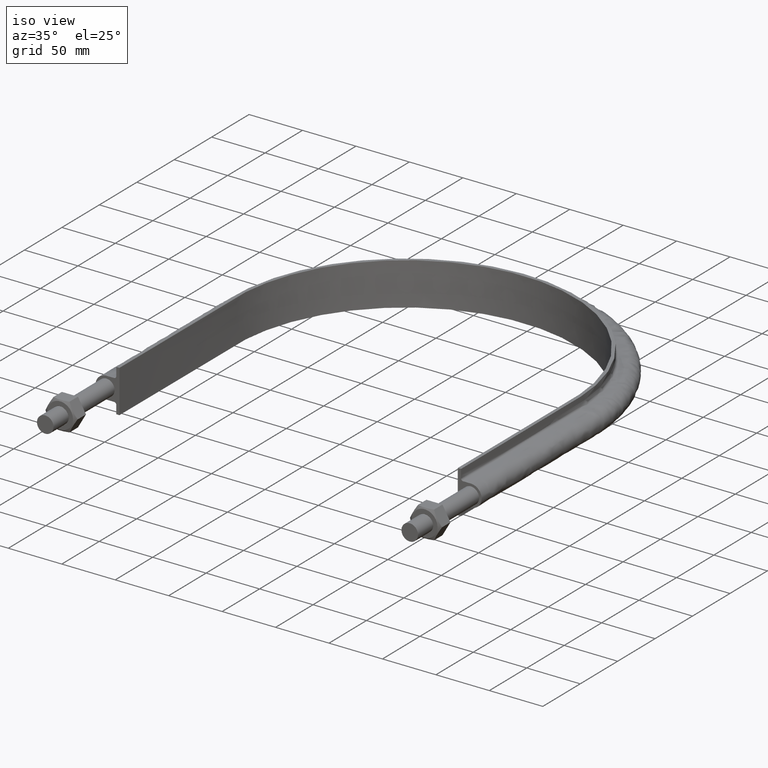
[diagram: clean part render]
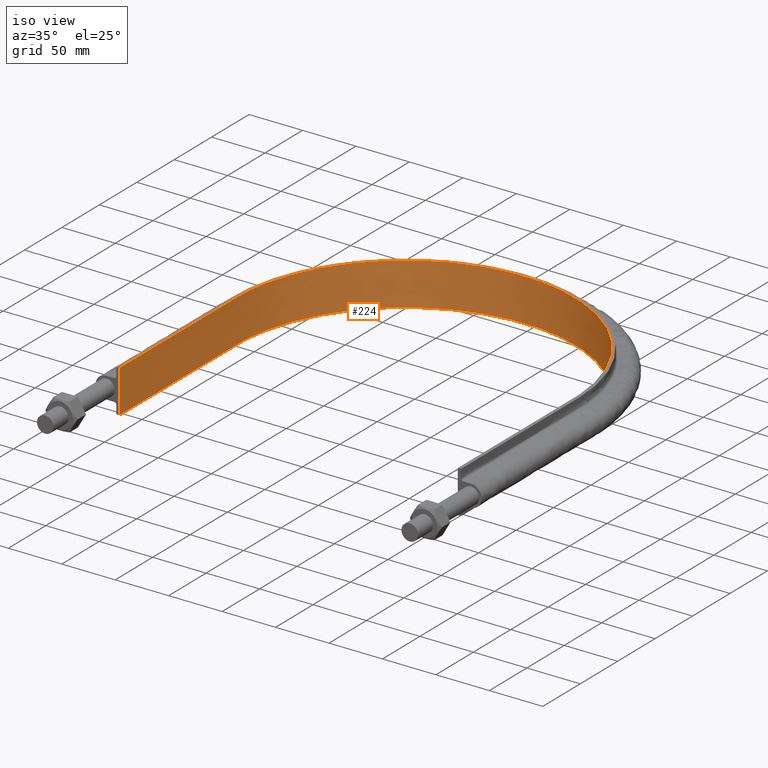
[diagram: same view with one face highlighted and labeled with its STEP entity id]
A machine part, iso view. The second image highlights one B-rep face of the part: STEP entity #224.
In plain terms, the highlighted face is a SurfaceOfExtrusion surface.
Its self-contained STEP definition (entity closure, byte-faithful):
#224 = ADVANCED_FACE( '', ( #272 ), #273, .T. );
#272 = FACE_OUTER_BOUND( '', #949, .T. );
#273 = SURFACE_OF_LINEAR_EXTRUSION( '', #950, #951 );
#949 = EDGE_LOOP( '', ( #1664, #1665, #1666, #1667 ) );
#950 = B_SPLINE_CURVE_WITH_KNOTS( '', 3, ( #1668, #1669, #1670, #1671, #1672, #1673, #1674, #1675, #1676, #1677, #1678, #1679, #1680, #1681, #1682, #1683, #1684, #1685 ), .UNSPECIFIED., .F., .F., ( 4, 3, 1, 1, 1, 1, 1, 1, 1, 1, 3, 4 ), ( -11.0000000000000, -10.0000000000000, -9.00000000000000, -8.00000000000000, -7.00000000000000, -6.00000000000000, -5.00000000000000, -4.00000000000000, -3.00000000000000, -2.00000000000000, -1.00000000000000, 0.000000000000000 ), .UNSPECIFIED. );
#951 = VECTOR( '', #1686, 1000.00000000000 );
#1664 = ORIENTED_EDGE( '', *, *, #1905, .T. );
#1665 = ORIENTED_EDGE( '', *, *, #1915, .F. );
#1666 = ORIENTED_EDGE( '', *, *, #1912, .F. );
#1667 = ORIENTED_EDGE( '', *, *, #1916, .T. );
#1668 = CARTESIAN_POINT( '', ( -158.250000000000, 81.6600000000000, -517.955580080485 ) );
#1669 = CARTESIAN_POINT( '', ( -158.250000000000, 133.693333333333, -517.955580080485 ) );
#1670 = CARTESIAN_POINT( '', ( -158.250000000000, 185.726666666667, -517.955580080485 ) );
#1671 = CARTESIAN_POINT( '', ( -158.250000000000, 237.760000000000, -517.955580080485 ) );
#1672 = CARTESIAN_POINT( '', ( -158.250000000000, 256.156911933927, -517.955580080485 ) );
#1673 = CARTESIAN_POINT( '', ( -151.757047170069, 293.001902403907, -517.955580080485 ) );
#1674 = CARTESIAN_POINT( '', ( -123.713478340979, 341.566099773159, -517.955580080485 ) );
#1675 = CARTESIAN_POINT( '', ( -80.7482382074828, 377.620533900828, -517.955580080485 ) );
#1676 = CARTESIAN_POINT( '', ( -28.0435688290890, 396.802885516853, -517.955580080485 ) );
#1677 = CARTESIAN_POINT( '', ( 28.0435688290892, 396.802885516853, -517.955580080485 ) );
#1678 = CARTESIAN_POINT( '', ( 80.7482382074830, 377.620533900828, -517.955580080485 ) );
#1679 = CARTESIAN_POINT( '', ( 123.713478340980, 341.566099773159, -517.955580080485 ) );
#1680 = CARTESIAN_POINT( '', ( 151.757047170069, 293.001902403907, -517.955580080485 ) );
#1681 = CARTESIAN_POINT( '', ( 158.250000000000, 256.156911933927, -517.955580080485 ) );
#1682 = CARTESIAN_POINT( '', ( 158.250000000000, 237.760000000000, -517.955580080485 ) );
#1683 = CARTESIAN_POINT( '', ( 158.250000000000, 185.726666666667, -517.955580080485 ) );
#1684 = CARTESIAN_POINT( '', ( 158.250000000000, 133.693333333333, -517.955580080485 ) );
#1685 = CARTESIAN_POINT( '', ( 158.250000000000, 81.6600000000000, -517.955580080485 ) );
#1686 = DIRECTION( '', ( 0.000000000000000, 0.000000000000000, 1.00000000000000 ) );
#1905 = EDGE_CURVE( '', #1984, #1985, #1986, .T. );
#1912 = EDGE_CURVE( '', #1996, #1997, #1998, .T. );
#1915 = EDGE_CURVE( '', #1997, #1985, #2001, .T. );
#1916 = EDGE_CURVE( '', #1996, #1984, #2002, .T. );
#1984 = VERTEX_POINT( '', #2410 );
#1985 = VERTEX_POINT( '', #2411 );
#1986 = LINE( '', #2412, #2413 );
#1996 = VERTEX_POINT( '', #2548 );
#1997 = VERTEX_POINT( '', #2549 );
#1998 = LINE( '', #2550, #2551 );
#2001 = B_SPLINE_CURVE_WITH_KNOTS( '', 3, ( #2556, #2557, #2558, #2559, #2560, #2561, #2562, #2563, #2564, #2565, #2566, #2567, #2568, #2569, #2570, #2571, #2572, #2573 ), .UNSPECIFIED., .F., .F., ( 4, 3, 1, 1, 1, 1, 1, 1, 1, 1, 3, 4 ), ( -11.0000000000000, -10.0000000000000, -9.00000000000000, -8.00000000000000, -7.00000000000000, -6.00000000000000, -5.00000000000000, -4.00000000000000, -3.00000000000000, -2.00000000000000, -1.00000000000000, 0.000000000000000 ), .UNSPECIFIED. );
#2002 = B_SPLINE_CURVE_WITH_KNOTS( '', 3, ( #2574, #2575, #2576, #2577, #2578, #2579, #2580, #2581, #2582, #2583, #2584, #2585, #2586, #2587, #2588, #2589, #2590, #2591 ), .UNSPECIFIED., .F., .F., ( 4, 3, 1, 1, 1, 1, 1, 1, 1, 1, 3, 4 ), ( -11.0000000000000, -10.0000000000000, -9.00000000000000, -8.00000000000000, -7.00000000000000, -6.00000000000000, -5.00000000000000, -4.00000000000000, -3.00000000000000, -2.00000000000000, -1.00000000000000, 0.000000000000000 ), .UNSPECIFIED. );
#2410 = CARTESIAN_POINT( '', ( 158.250000000000, 81.6600000000000, -20.0000000000000 ) );
#2411 = CARTESIAN_POINT( '', ( 158.250000000000, 81.6600000000001, 20.0000000000000 ) );
#2412 = CARTESIAN_POINT( '', ( 158.250000000000, 81.6600000000000, -517.955580080485 ) );
#2413 = VECTOR( '', #2862, 1000.00000000000 );
#2548 = CARTESIAN_POINT( '', ( -158.250000000000, 81.6600000000001, -20.0000000000000 ) );
#2549 = CARTESIAN_POINT( '', ( -158.250000000000, 81.6600000000001, 20.0000000000000 ) );
#2550 = CARTESIAN_POINT( '', ( -158.250000000000, 81.6600000000000, -517.955580080485 ) );
#2551 = VECTOR( '', #2867, 1000.00000000000 );
#2556 = CARTESIAN_POINT( '', ( -158.250000000000, 81.6600000000000, 20.0000000000000 ) );
#2557 = CARTESIAN_POINT( '', ( -158.250000000000, 133.693333333333, 20.0000000000000 ) );
#2558 = CARTESIAN_POINT( '', ( -158.250000000000, 185.726666666667, 20.0000000000000 ) );
#2559 = CARTESIAN_POINT( '', ( -158.250000000000, 237.760000000000, 20.0000000000000 ) );
#2560 = CARTESIAN_POINT( '', ( -158.250000000000, 256.156911933927, 20.0000000000000 ) );
#2561 = CARTESIAN_POINT( '', ( -151.757047170069, 293.001902403907, 20.0000000000000 ) );
#2562 = CARTESIAN_POINT( '', ( -123.713478340979, 341.566099773159, 20.0000000000000 ) );
#2563 = CARTESIAN_POINT( '', ( -80.7482382074828, 377.620533900828, 20.0000000000000 ) );
#2564 = CARTESIAN_POINT( '', ( -28.0435688290890, 396.802885516853, 20.0000000000000 ) );
#2565 = CARTESIAN_POINT( '', ( 28.0435688290892, 396.802885516853, 20.0000000000000 ) );
#2566 = CARTESIAN_POINT( '', ( 80.7482382074830, 377.620533900828, 20.0000000000000 ) );
#2567 = CARTESIAN_POINT( '', ( 123.713478340980, 341.566099773159, 20.0000000000000 ) );
#2568 = CARTESIAN_POINT( '', ( 151.757047170069, 293.001902403907, 20.0000000000000 ) );
#2569 = CARTESIAN_POINT( '', ( 158.250000000000, 256.156911933927, 20.0000000000000 ) );
#2570 = CARTESIAN_POINT( '', ( 158.250000000000, 237.760000000000, 20.0000000000000 ) );
#2571 = CARTESIAN_POINT( '', ( 158.250000000000, 185.726666666667, 20.0000000000000 ) );
#2572 = CARTESIAN_POINT( '', ( 158.250000000000, 133.693333333333, 20.0000000000000 ) );
#2573 = CARTESIAN_POINT( '', ( 158.250000000000, 81.6600000000000, 20.0000000000000 ) );
#2574 = CARTESIAN_POINT( '', ( -158.250000000000, 81.6600000000000, -20.0000000000000 ) );
#2575 = CARTESIAN_POINT( '', ( -158.250000000000, 133.693333333333, -20.0000000000000 ) );
#2576 = CARTESIAN_POINT( '', ( -158.250000000000, 185.726666666667, -20.0000000000000 ) );
#2577 = CARTESIAN_POINT( '', ( -158.250000000000, 237.760000000000, -20.0000000000000 ) );
#2578 = CARTESIAN_POINT( '', ( -158.250000000000, 256.156911933927, -20.0000000000000 ) );
#2579 = CARTESIAN_POINT( '', ( -151.757047170069, 293.001902403907, -20.0000000000000 ) );
#2580 = CARTESIAN_POINT( '', ( -123.713478340979, 341.566099773159, -20.0000000000000 ) );
#2581 = CARTESIAN_POINT( '', ( -80.7482382074828, 377.620533900828, -20.0000000000000 ) );
#2582 = CARTESIAN_POINT( '', ( -28.0435688290890, 396.802885516853, -20.0000000000000 ) );
#2583 = CARTESIAN_POINT( '', ( 28.0435688290892, 396.802885516853, -20.0000000000000 ) );
#2584 = CARTESIAN_POINT( '', ( 80.7482382074830, 377.620533900828, -20.0000000000000 ) );
#2585 = CARTESIAN_POINT( '', ( 123.713478340980, 341.566099773159, -20.0000000000000 ) );
#2586 = CARTESIAN_POINT( '', ( 151.757047170069, 293.001902403907, -20.0000000000000 ) );
#2587 = CARTESIAN_POINT( '', ( 158.250000000000, 256.156911933927, -20.0000000000000 ) );
#2588 = CARTESIAN_POINT( '', ( 158.250000000000, 237.760000000000, -20.0000000000000 ) );
#2589 = CARTESIAN_POINT( '', ( 158.250000000000, 185.726666666667, -20.0000000000000 ) );
#2590 = CARTESIAN_POINT( '', ( 158.250000000000, 133.693333333333, -20.0000000000000 ) );
#2591 = CARTESIAN_POINT( '', ( 158.250000000000, 81.6600000000000, -20.0000000000000 ) );
#2862 = DIRECTION( '', ( 0.000000000000000, 0.000000000000000, 1.00000000000000 ) );
#2867 = DIRECTION( '', ( 0.000000000000000, 0.000000000000000, 1.00000000000000 ) );